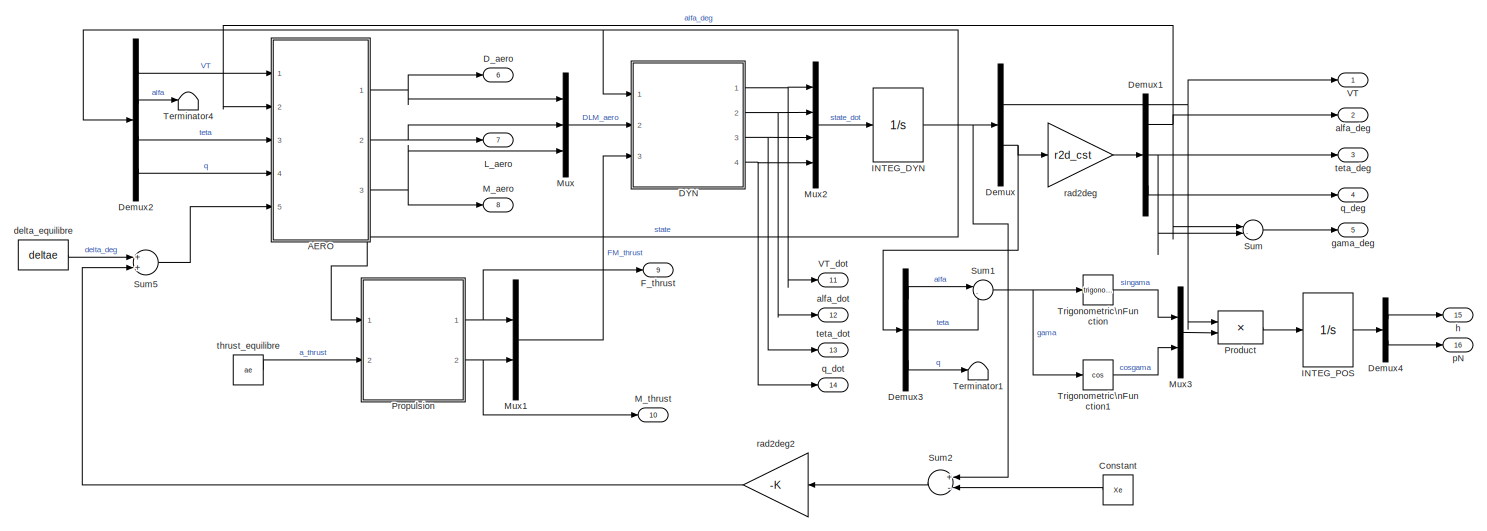
[diagram: root canvas - part 1/2, full width, top band]
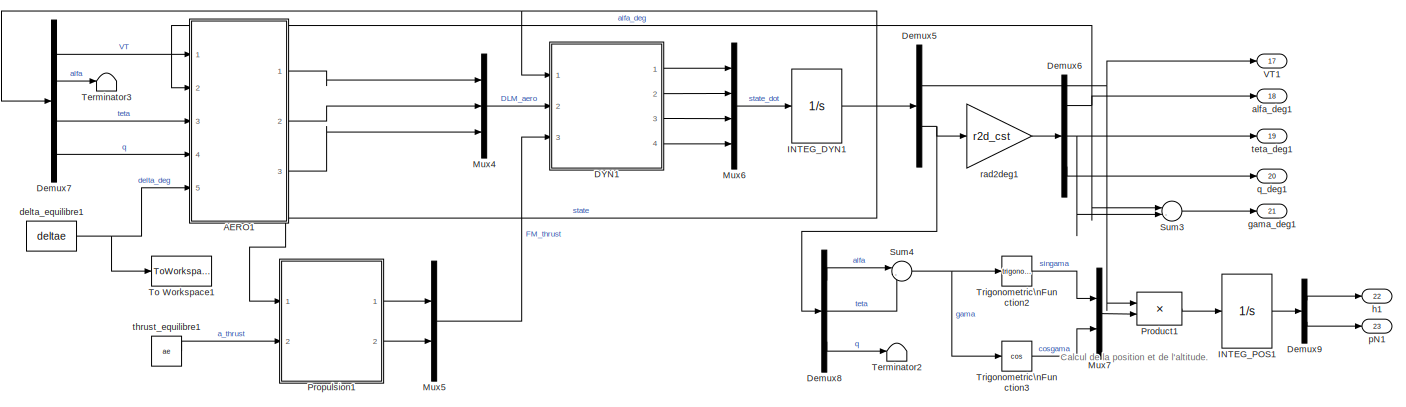
[diagram: root canvas - part 2/2, full width, bottom band]
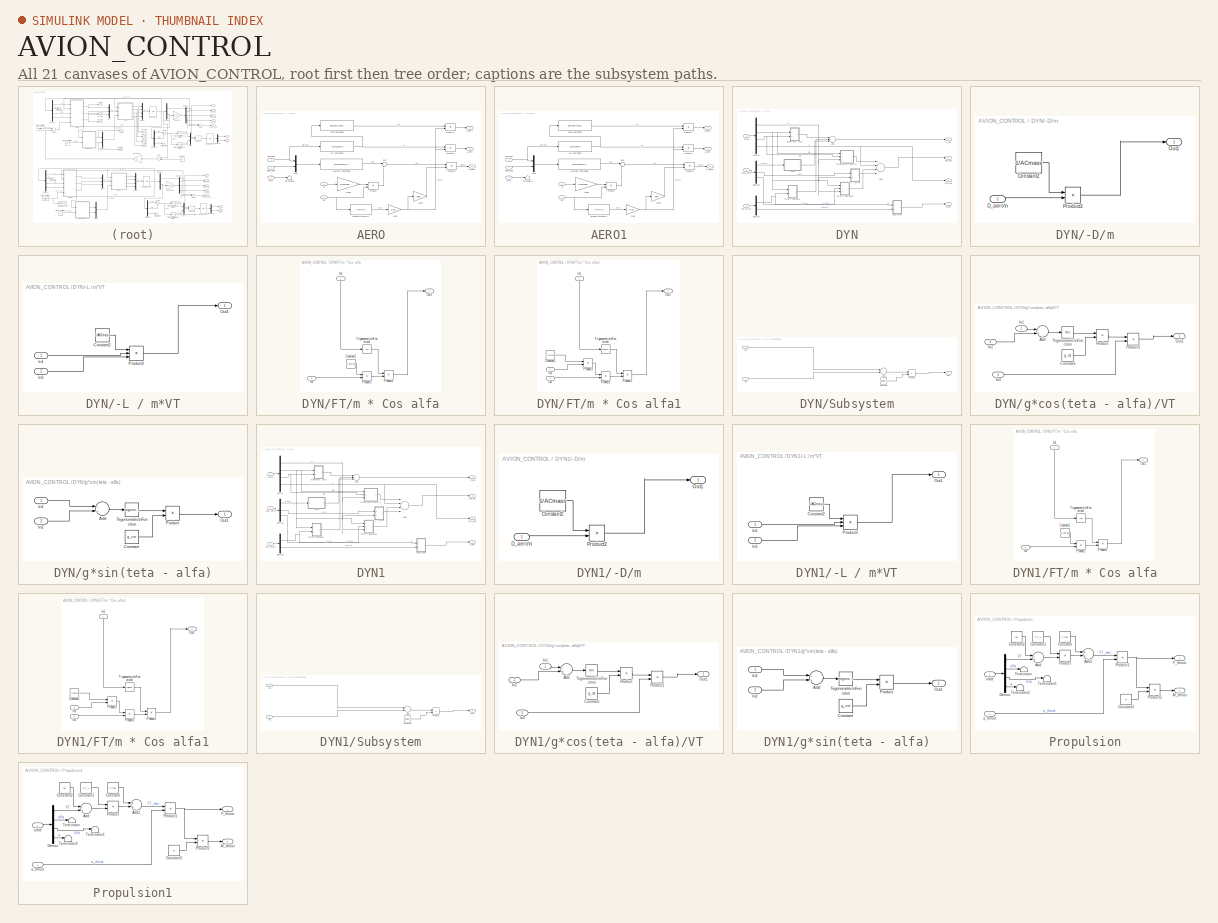
[diagram: thumbnail index - all 21 canvases of the model, root first then tree order]
MODEL AVION_CONTROL
KIND model
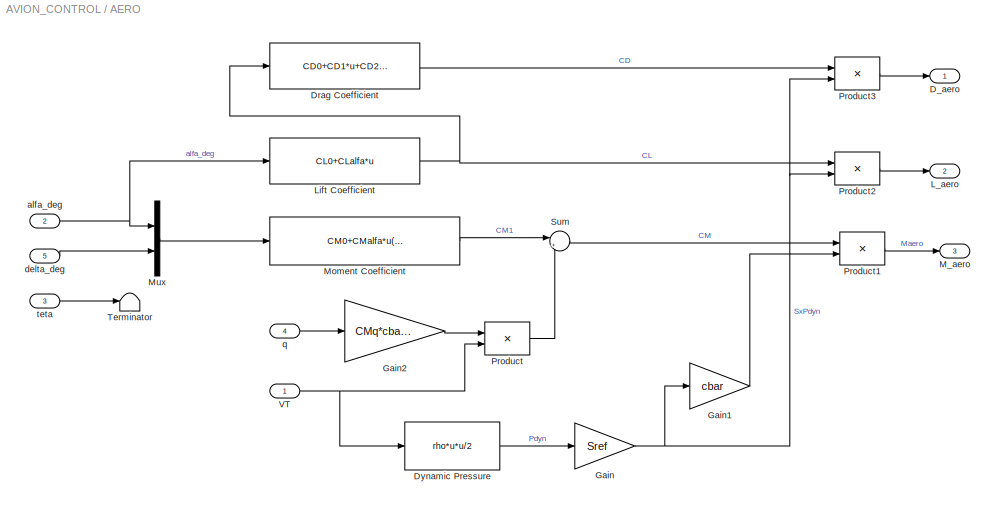
BLOCK [SubSystem] AERO
  Ports = [5, 3]
  RequestExecContextInheritance = off
  SID = 1
  Variant = off
BLOCK [Outport] AERO/D_aero
  IconDisplay = Port number
  SID = 21
BLOCK [Fcn] AERO/Drag Coefficient
  Expr = CD0+CD1*u+CD2*u*u
  SID = 7
BLOCK [Fcn] AERO/Dynamic Pressure
  Expr = rho*u*u/2
  SID = 8
BLOCK [Gain] AERO/Gain
  Gain = Sref
  SID = 9
BLOCK [Gain] AERO/Gain1
  Gain = cbar
  SID = 10
BLOCK [Gain] AERO/Gain2
  Gain = CMq*cbar/2
  SID = 11
BLOCK [Outport] AERO/L_aero
  IconDisplay = Port number
  Port = 2
  SID = 22
BLOCK [Fcn] AERO/Lift Coefficient
  Expr = CL0+CLalfa*u
  SID = 12
BLOCK [Outport] AERO/M_aero
  IconDisplay = Port number
  Port = 3
  SID = 23
BLOCK [Fcn] AERO/Moment Coefficient
  Expr = CM0+CMalfa*u(1)+CMdelta*u(2)
  SID = 13
BLOCK [Mux] AERO/Mux
  DisplayOption = bar
  Inputs = 2
  Ports = [2, 1]
  SID = 14
BLOCK [Product] AERO/Product
  Inputs = */
  Ports = [2, 1]
  RndMeth = Floor
  SID = 15
BLOCK [Product] AERO/Product1
  Inputs = **
  Ports = [2, 1]
  RndMeth = Floor
  SID = 16
BLOCK [Product] AERO/Product2
  Inputs = **
  Ports = [2, 1]
  RndMeth = Floor
  SID = 17
BLOCK [Product] AERO/Product3
  Inputs = **
  Ports = [2, 1]
  RndMeth = Floor
  SID = 18
BLOCK [Sum] AERO/Sum
  IconShape = round
  Inputs = |++
  Ports = [2, 1]
  SID = 19
BLOCK [Terminator] AERO/Terminator
  SID = 20
BLOCK [Inport] AERO/VT
  IconDisplay = Port number
  SID = 2
BLOCK [Inport] AERO/alfa_deg
  IconDisplay = Port number
  Port = 2
  SID = 3
BLOCK [Inport] AERO/delta_deg
  IconDisplay = Port number
  Port = 5
  SID = 6
BLOCK [Inport] AERO/q
  IconDisplay = Port number
  Port = 4
  SID = 5
BLOCK [Inport] AERO/teta
  IconDisplay = Port number
  Port = 3
  SID = 4
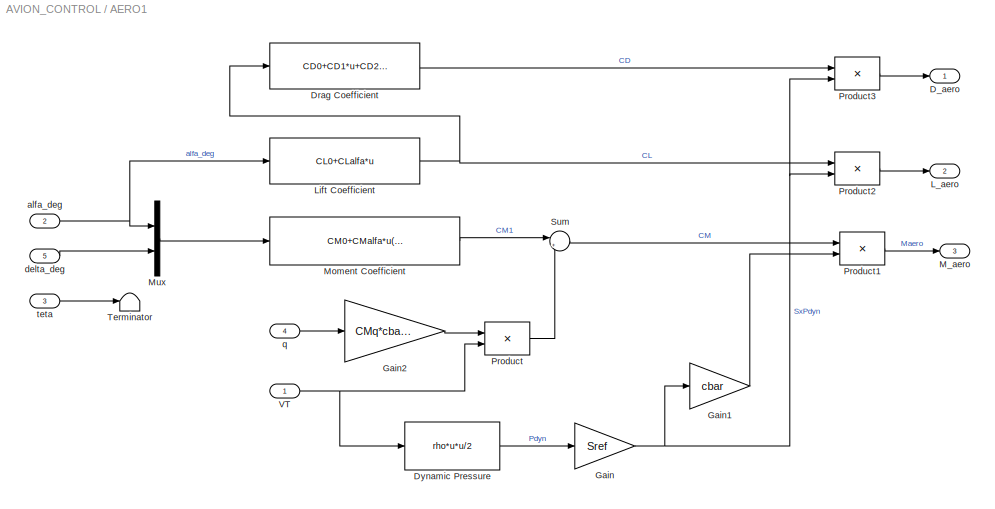
BLOCK [SubSystem] AERO1
  Ports = [5, 3]
  RequestExecContextInheritance = off
  SID = 340
  Variant = off
BLOCK [Outport] AERO1/D_aero
  IconDisplay = Port number
  SID = 360
BLOCK [Fcn] AERO1/Drag Coefficient
  Expr = CD0+CD1*u+CD2*u*u
  SID = 346
BLOCK [Fcn] AERO1/Dynamic Pressure
  Expr = rho*u*u/2
  SID = 347
BLOCK [Gain] AERO1/Gain
  Gain = Sref
  SID = 348
BLOCK [Gain] AERO1/Gain1
  Gain = cbar
  SID = 349
BLOCK [Gain] AERO1/Gain2
  Gain = CMq*cbar/2
  SID = 350
BLOCK [Outport] AERO1/L_aero
  IconDisplay = Port number
  Port = 2
  SID = 361
BLOCK [Fcn] AERO1/Lift Coefficient
  Expr = CL0+CLalfa*u
  SID = 351
BLOCK [Outport] AERO1/M_aero
  IconDisplay = Port number
  Port = 3
  SID = 362
BLOCK [Fcn] AERO1/Moment Coefficient
  Expr = CM0+CMalfa*u(1)+CMdelta*u(2)
  SID = 352
BLOCK [Mux] AERO1/Mux
  DisplayOption = bar
  Inputs = 2
  Ports = [2, 1]
  SID = 353
BLOCK [Product] AERO1/Product
  Inputs = */
  Ports = [2, 1]
  RndMeth = Floor
  SID = 354
BLOCK [Product] AERO1/Product1
  Inputs = **
  Ports = [2, 1]
  RndMeth = Floor
  SID = 355
BLOCK [Product] AERO1/Product2
  Inputs = **
  Ports = [2, 1]
  RndMeth = Floor
  SID = 356
BLOCK [Product] AERO1/Product3
  Inputs = **
  Ports = [2, 1]
  RndMeth = Floor
  SID = 357
BLOCK [Sum] AERO1/Sum
  IconShape = round
  Inputs = |++
  Ports = [2, 1]
  SID = 358
BLOCK [Terminator] AERO1/Terminator
  SID = 359
BLOCK [Inport] AERO1/VT
  IconDisplay = Port number
  SID = 341
BLOCK [Inport] AERO1/alfa_deg
  IconDisplay = Port number
  Port = 2
  SID = 342
BLOCK [Inport] AERO1/delta_deg
  IconDisplay = Port number
  Port = 5
  SID = 345
BLOCK [Inport] AERO1/q
  IconDisplay = Port number
  Port = 4
  SID = 344
BLOCK [Inport] AERO1/teta
  IconDisplay = Port number
  Port = 3
  SID = 343
BLOCK [Constant] Constant
  SID = 494
  Value = Xe
BLOCK [SubSystem] DYN
  Ports = [3, 4]
  RequestExecContextInheritance = off
  SID = 25
  Variant = off
BLOCK [SubSystem] DYN/-D//m
  Ports = [1, 1]
  RequestExecContextInheritance = off
  SID = 180
  Variant = off
BLOCK [Constant] DYN/-D//m/Constant2
  SID = 170
  Value = 1/ACmass
BLOCK [Inport] DYN/-D//m/D_aero\n
  IconDisplay = Port number
  SID = 181
BLOCK [Outport] DYN/-D//m/Out1
  IconDisplay = Port number
  SID = 182
BLOCK [Product] DYN/-D//m/Product3
  InputSameDT = off
  OutDataTypeStr = Inherit: Inherit via internal rule
  Ports = [2, 1]
  RndMeth = Floor
  SID = 171
  SaturateOnIntegerOverflow = off
BLOCK [SubSystem] DYN/-L // m*VT
  Ports = [2, 1]
  RequestExecContextInheritance = off
  SID = 214
  Variant = off
BLOCK [Constant] DYN/-L // m*VT/Constant2
  SID = 216
  Value = 1/ACmass
BLOCK [Inport] DYN/-L // m*VT/In1
  IconDisplay = Port number
  SID = 215
BLOCK [Inport] DYN/-L // m*VT/In2
  IconDisplay = Port number
  Port = 2
  SID = 219
BLOCK [Outport] DYN/-L // m*VT/Out1
  IconDisplay = Port number
  SID = 218
BLOCK [Product] DYN/-L // m*VT/Product3
  InputSameDT = off
  Inputs = **/
  OutDataTypeStr = Inherit: Inherit via internal rule
  Ports = [3, 1]
  RndMeth = Floor
  SID = 217
  SaturateOnIntegerOverflow = off
BLOCK [Sum] DYN/Add1
  InputSameDT = off
  Inputs = -+-
  OutDataTypeStr = Inherit: Inherit via internal rule
  Ports = [3, 1]
  SID = 165
  SaturateOnIntegerOverflow = off
BLOCK [Sum] DYN/Add2
  InputSameDT = off
  Inputs = ++--
  OutDataTypeStr = Inherit: Inherit via internal rule
  Ports = [4, 1]
  SID = 200
  SaturateOnIntegerOverflow = off
BLOCK [Inport] DYN/DLM_aero
  IconDisplay = Port number
  Port = 2
  SID = 27
BLOCK [Demux] DYN/Demux
  Ports = [1, 4]
  SID = 29
BLOCK [Demux] DYN/Demux1
  Outputs = 3
  Ports = [1, 3]
  SID = 30
BLOCK [Demux] DYN/Demux2
  Outputs = 2
  Ports = [1, 2]
  SID = 31
BLOCK [Inport] DYN/FM_thrust
  IconDisplay = Port number
  Port = 3
  SID = 28
BLOCK [SubSystem] DYN/FT//m * Cos alfa
  Ports = [2, 1]
  RequestExecContextInheritance = off
  SID = 176
  Variant = off
BLOCK [Constant] DYN/FT//m * Cos alfa/Constant1
  SID = 167
  Value = 1/ACmass
BLOCK [Inport] DYN/FT//m * Cos alfa/In1
  IconDisplay = Port number
  SID = 177
BLOCK [Inport] DYN/FT//m * Cos alfa/In2
  IconDisplay = Port number
  Port = 2
  SID = 178
BLOCK [Outport] DYN/FT//m * Cos alfa/Out1
  IconDisplay = Port number
  SID = 179
BLOCK [Product] DYN/FT//m * Cos alfa/Product1
  InputSameDT = off
  OutDataTypeStr = Inherit: Inherit via internal rule
  Ports = [2, 1]
  RndMeth = Floor
  SID = 166
  SaturateOnIntegerOverflow = off
BLOCK [Product] DYN/FT//m * Cos alfa/Product2
  InputSameDT = off
  OutDataTypeStr = Inherit: Inherit via internal rule
  Ports = [2, 1]
  RndMeth = Floor
  SID = 169
  SaturateOnIntegerOverflow = off
BLOCK [Trigonometry] DYN/FT//m * Cos alfa/Trigonometric\nFunction1
  Operator = cos
  Ports = [1, 1]
  SID = 168
BLOCK [SubSystem] DYN/FT//m * Cos alfa1
  Ports = [3, 1]
  RequestExecContextInheritance = off
  SID = 201
  Variant = off
BLOCK [Constant] DYN/FT//m * Cos alfa1/Constant1
  SID = 204
  Value = 1/ACmass
BLOCK [Inport] DYN/FT//m * Cos alfa1/In1
  IconDisplay = Port number
  SID = 202
BLOCK [Inport] DYN/FT//m * Cos alfa1/In2
  IconDisplay = Port number
  Port = 2
  SID = 203
BLOCK [Inport] DYN/FT//m * Cos alfa1/In3
  IconDisplay = Port number
  Port = 3
  SID = 211
BLOCK [Outport] DYN/FT//m * Cos alfa1/Out1
  IconDisplay = Port number
  SID = 208
BLOCK [Product] DYN/FT//m * Cos alfa1/Product1
  InputSameDT = off
  OutDataTypeStr = Inherit: Inherit via internal rule
  Ports = [2, 1]
  RndMeth = Floor
  SID = 205
  SaturateOnIntegerOverflow = off
BLOCK [Product] DYN/FT//m * Cos alfa1/Product2
  InputSameDT = off
  OutDataTypeStr = Inherit: Inherit via internal rule
  Ports = [2, 1]
  RndMeth = Floor
  SID = 206
  SaturateOnIntegerOverflow = off
BLOCK [Product] DYN/FT//m * Cos alfa1/Product3
  InputSameDT = off
  Inputs = */
  OutDataTypeStr = Inherit: Inherit via internal rule
  Ports = [2, 1]
  RndMeth = Floor
  SID = 209
  SaturateOnIntegerOverflow = off
BLOCK [Trigonometry] DYN/FT//m * Cos alfa1/Trigonometric\nFunction1
  Ports = [1, 1]
  SID = 207
BLOCK [SubSystem] DYN/Subsystem
  Ports = [2, 1]
  RequestExecContextInheritance = off
  SID = 223
  Variant = off
BLOCK [Sum] DYN/Subsystem/Add3
  InputSameDT = off
  OutDataTypeStr = Inherit: Inherit via internal rule
  Ports = [2, 1]
  SID = 220
  SaturateOnIntegerOverflow = off
BLOCK [Constant] DYN/Subsystem/Constant
  SID = 222
  Value = ACinertia_yy
BLOCK [Inport] DYN/Subsystem/In1
  IconDisplay = Port number
  SID = 224
BLOCK [Inport] DYN/Subsystem/In2
  IconDisplay = Port number
  Port = 2
  SID = 225
BLOCK [Outport] DYN/Subsystem/Out1
  IconDisplay = Port number
  SID = 226
BLOCK [Product] DYN/Subsystem/Product
  InputSameDT = off
  Inputs = */
  OutDataTypeStr = Inherit: Inherit via internal rule
  Ports = [2, 1]
  RndMeth = Floor
  SID = 221
  SaturateOnIntegerOverflow = off
BLOCK [Outport] DYN/VT_dot
  IconDisplay = Port number
  SID = 51
BLOCK [Outport] DYN/alfa_dot
  IconDisplay = Port number
  Port = 2
  SID = 52
BLOCK [SubSystem] DYN/g*cos(teta - alfa)//VT
  Ports = [3, 1]
  RequestExecContextInheritance = off
  SID = 187
  Variant = off
BLOCK [Sum] DYN/g*cos(teta - alfa)//VT/Add
  InputSameDT = off
  Inputs = -+
  OutDataTypeStr = Inherit: Inherit via internal rule
  Ports = [2, 1]
  SID = 190
  SaturateOnIntegerOverflow = off
BLOCK [Constant] DYN/g*cos(teta - alfa)//VT/Constant
  SID = 191
  Value = g_cst
BLOCK [Inport] DYN/g*cos(teta - alfa)//VT/In1
  IconDisplay = Port number
  SID = 188
BLOCK [Inport] DYN/g*cos(teta - alfa)//VT/In2
  IconDisplay = Port number
  Port = 2
  SID = 189
BLOCK [Inport] DYN/g*cos(teta - alfa)//VT/In3
  IconDisplay = Port number
  Port = 3
  SID = 195
BLOCK [Outport] DYN/g*cos(teta - alfa)//VT/Out1
  IconDisplay = Port number
  SID = 194
BLOCK [Product] DYN/g*cos(teta - alfa)//VT/Product
  InputSameDT = off
  OutDataTypeStr = Inherit: Inherit via internal rule
  Ports = [2, 1]
  RndMeth = Floor
  SID = 192
  SaturateOnIntegerOverflow = off
BLOCK [Product] DYN/g*cos(teta - alfa)//VT/Product1
  InputSameDT = off
  Inputs = */
  OutDataTypeStr = Inherit: Inherit via internal rule
  Ports = [2, 1]
  RndMeth = Floor
  SID = 196
  SaturateOnIntegerOverflow = off
BLOCK [Trigonometry] DYN/g*cos(teta - alfa)//VT/Trigonometric\nFunction
  Operator = cos
  Ports = [1, 1]
  SID = 193
BLOCK [SubSystem] DYN/g*sin(teta - alfa)
  Ports = [2, 1]
  RequestExecContextInheritance = off
  SID = 183
  Variant = off
BLOCK [Sum] DYN/g*sin(teta - alfa)/Add
  InputSameDT = off
  Inputs = -+
  OutDataTypeStr = Inherit: Inherit via internal rule
  Ports = [2, 1]
  SID = 162
  SaturateOnIntegerOverflow = off
BLOCK [Constant] DYN/g*sin(teta - alfa)/Constant
  SID = 161
  Value = g_cst
BLOCK [Inport] DYN/g*sin(teta - alfa)/In1
  IconDisplay = Port number
  SID = 184
BLOCK [Inport] DYN/g*sin(teta - alfa)/In2
  IconDisplay = Port number
  Port = 2
  SID = 185
BLOCK [Outport] DYN/g*sin(teta - alfa)/Out1
  IconDisplay = Port number
  SID = 186
BLOCK [Product] DYN/g*sin(teta - alfa)/Product
  InputSameDT = off
  OutDataTypeStr = Inherit: Inherit via internal rule
  Ports = [2, 1]
  RndMeth = Floor
  SID = 164
  SaturateOnIntegerOverflow = off
BLOCK [Trigonometry] DYN/g*sin(teta - alfa)/Trigonometric\nFunction
  Ports = [1, 1]
  SID = 163
BLOCK [Outport] DYN/q_dot
  IconDisplay = Port number
  Port = 4
  SID = 54
BLOCK [Inport] DYN/state
  IconDisplay = Port number
  SID = 26
BLOCK [Outport] DYN/teta_dot
  IconDisplay = Port number
  Port = 3
  SID = 53
BLOCK [SubSystem] DYN1
  Ports = [3, 4]
  RequestExecContextInheritance = off
  SID = 363
  Variant = off
BLOCK [SubSystem] DYN1/-D//m
  Ports = [1, 1]
  RequestExecContextInheritance = off
  SID = 367
  Variant = off
BLOCK [Constant] DYN1/-D//m/Constant2
  SID = 369
  Value = 1/ACmass
BLOCK [Inport] DYN1/-D//m/D_aero\n
  IconDisplay = Port number
  SID = 368
BLOCK [Outport] DYN1/-D//m/Out1
  IconDisplay = Port number
  SID = 371
BLOCK [Product] DYN1/-D//m/Product3
  InputSameDT = off
  OutDataTypeStr = Inherit: Inherit via internal rule
  Ports = [2, 1]
  RndMeth = Floor
  SID = 370
  SaturateOnIntegerOverflow = off
BLOCK [SubSystem] DYN1/-L // m*VT
  Ports = [2, 1]
  RequestExecContextInheritance = off
  SID = 372
  Variant = off
BLOCK [Constant] DYN1/-L // m*VT/Constant2
  SID = 375
  Value = 1/ACmass
BLOCK [Inport] DYN1/-L // m*VT/In1
  IconDisplay = Port number
  SID = 373
BLOCK [Inport] DYN1/-L // m*VT/In2
  IconDisplay = Port number
  Port = 2
  SID = 374
BLOCK [Outport] DYN1/-L // m*VT/Out1
  IconDisplay = Port number
  SID = 377
BLOCK [Product] DYN1/-L // m*VT/Product3
  InputSameDT = off
  Inputs = **/
  OutDataTypeStr = Inherit: Inherit via internal rule
  Ports = [3, 1]
  RndMeth = Floor
  SID = 376
  SaturateOnIntegerOverflow = off
BLOCK [Sum] DYN1/Add1
  InputSameDT = off
  Inputs = -+-
  OutDataTypeStr = Inherit: Inherit via internal rule
  Ports = [3, 1]
  SID = 378
  SaturateOnIntegerOverflow = off
BLOCK [Sum] DYN1/Add2
  InputSameDT = off
  Inputs = ++--
  OutDataTypeStr = Inherit: Inherit via internal rule
  Ports = [4, 1]
  SID = 379
  SaturateOnIntegerOverflow = off
BLOCK [Inport] DYN1/DLM_aero
  IconDisplay = Port number
  Port = 2
  SID = 365
BLOCK [Demux] DYN1/Demux
  Ports = [1, 4]
  SID = 380
BLOCK [Demux] DYN1/Demux1
  Outputs = 3
  Ports = [1, 3]
  SID = 381
BLOCK [Demux] DYN1/Demux2
  Outputs = 2
  Ports = [1, 2]
  SID = 382
BLOCK [Inport] DYN1/FM_thrust
  IconDisplay = Port number
  Port = 3
  SID = 366
BLOCK [SubSystem] DYN1/FT//m * Cos alfa
  Ports = [2, 1]
  RequestExecContextInheritance = off
  SID = 383
  Variant = off
BLOCK [Constant] DYN1/FT//m * Cos alfa/Constant1
  SID = 386
  Value = 1/ACmass
BLOCK [Inport] DYN1/FT//m * Cos alfa/In1
  IconDisplay = Port number
  SID = 384
BLOCK [Inport] DYN1/FT//m * Cos alfa/In2
  IconDisplay = Port number
  Port = 2
  SID = 385
BLOCK [Outport] DYN1/FT//m * Cos alfa/Out1
  IconDisplay = Port number
  SID = 390
BLOCK [Product] DYN1/FT//m * Cos alfa/Product1
  InputSameDT = off
  OutDataTypeStr = Inherit: Inherit via internal rule
  Ports = [2, 1]
  RndMeth = Floor
  SID = 387
  SaturateOnIntegerOverflow = off
BLOCK [Product] DYN1/FT//m * Cos alfa/Product2
  InputSameDT = off
  OutDataTypeStr = Inherit: Inherit via internal rule
  Ports = [2, 1]
  RndMeth = Floor
  SID = 388
  SaturateOnIntegerOverflow = off
BLOCK [Trigonometry] DYN1/FT//m * Cos alfa/Trigonometric\nFunction1
  Operator = cos
  Ports = [1, 1]
  SID = 389
BLOCK [SubSystem] DYN1/FT//m * Cos alfa1
  Ports = [3, 1]
  RequestExecContextInheritance = off
  SID = 391
  Variant = off
BLOCK [Constant] DYN1/FT//m * Cos alfa1/Constant1
  SID = 395
  Value = 1/ACmass
BLOCK [Inport] DYN1/FT//m * Cos alfa1/In1
  IconDisplay = Port number
  SID = 392
BLOCK [Inport] DYN1/FT//m * Cos alfa1/In2
  IconDisplay = Port number
  Port = 2
  SID = 393
BLOCK [Inport] DYN1/FT//m * Cos alfa1/In3
  IconDisplay = Port number
  Port = 3
  SID = 394
BLOCK [Outport] DYN1/FT//m * Cos alfa1/Out1
  IconDisplay = Port number
  SID = 400
BLOCK [Product] DYN1/FT//m * Cos alfa1/Product1
  InputSameDT = off
  OutDataTypeStr = Inherit: Inherit via internal rule
  Ports = [2, 1]
  RndMeth = Floor
  SID = 396
  SaturateOnIntegerOverflow = off
BLOCK [Product] DYN1/FT//m * Cos alfa1/Product2
  InputSameDT = off
  OutDataTypeStr = Inherit: Inherit via internal rule
  Ports = [2, 1]
  RndMeth = Floor
  SID = 397
  SaturateOnIntegerOverflow = off
BLOCK [Product] DYN1/FT//m * Cos alfa1/Product3
  InputSameDT = off
  Inputs = */
  OutDataTypeStr = Inherit: Inherit via internal rule
  Ports = [2, 1]
  RndMeth = Floor
  SID = 398
  SaturateOnIntegerOverflow = off
BLOCK [Trigonometry] DYN1/FT//m * Cos alfa1/Trigonometric\nFunction1
  Ports = [1, 1]
  SID = 399
BLOCK [SubSystem] DYN1/Subsystem
  Ports = [2, 1]
  RequestExecContextInheritance = off
  SID = 401
  Variant = off
BLOCK [Sum] DYN1/Subsystem/Add3
  InputSameDT = off
  OutDataTypeStr = Inherit: Inherit via internal rule
  Ports = [2, 1]
  SID = 404
  SaturateOnIntegerOverflow = off
BLOCK [Constant] DYN1/Subsystem/Constant
  SID = 405
  Value = ACinertia_yy
BLOCK [Inport] DYN1/Subsystem/In1
  IconDisplay = Port number
  SID = 402
BLOCK [Inport] DYN1/Subsystem/In2
  IconDisplay = Port number
  Port = 2
  SID = 403
BLOCK [Outport] DYN1/Subsystem/Out1
  IconDisplay = Port number
  SID = 407
BLOCK [Product] DYN1/Subsystem/Product
  InputSameDT = off
  Inputs = */
  OutDataTypeStr = Inherit: Inherit via internal rule
  Ports = [2, 1]
  RndMeth = Floor
  SID = 406
  SaturateOnIntegerOverflow = off
BLOCK [Outport] DYN1/VT_dot
  IconDisplay = Port number
  SID = 426
BLOCK [Outport] DYN1/alfa_dot
  IconDisplay = Port number
  Port = 2
  SID = 427
BLOCK [SubSystem] DYN1/g*cos(teta - alfa)//VT
  Ports = [3, 1]
  RequestExecContextInheritance = off
  SID = 408
  Variant = off
BLOCK [Sum] DYN1/g*cos(teta - alfa)//VT/Add
  InputSameDT = off
  Inputs = -+
  OutDataTypeStr = Inherit: Inherit via internal rule
  Ports = [2, 1]
  SID = 412
  SaturateOnIntegerOverflow = off
BLOCK [Constant] DYN1/g*cos(teta - alfa)//VT/Constant
  SID = 413
  Value = g_cst
BLOCK [Inport] DYN1/g*cos(teta - alfa)//VT/In1
  IconDisplay = Port number
  SID = 409
BLOCK [Inport] DYN1/g*cos(teta - alfa)//VT/In2
  IconDisplay = Port number
  Port = 2
  SID = 410
BLOCK [Inport] DYN1/g*cos(teta - alfa)//VT/In3
  IconDisplay = Port number
  Port = 3
  SID = 411
BLOCK [Outport] DYN1/g*cos(teta - alfa)//VT/Out1
  IconDisplay = Port number
  SID = 417
BLOCK [Product] DYN1/g*cos(teta - alfa)//VT/Product
  InputSameDT = off
  OutDataTypeStr = Inherit: Inherit via internal rule
  Ports = [2, 1]
  RndMeth = Floor
  SID = 414
  SaturateOnIntegerOverflow = off
BLOCK [Product] DYN1/g*cos(teta - alfa)//VT/Product1
  InputSameDT = off
  Inputs = */
  OutDataTypeStr = Inherit: Inherit via internal rule
  Ports = [2, 1]
  RndMeth = Floor
  SID = 415
  SaturateOnIntegerOverflow = off
BLOCK [Trigonometry] DYN1/g*cos(teta - alfa)//VT/Trigonometric\nFunction
  Operator = cos
  Ports = [1, 1]
  SID = 416
BLOCK [SubSystem] DYN1/g*sin(teta - alfa)
  Ports = [2, 1]
  RequestExecContextInheritance = off
  SID = 418
  Variant = off
BLOCK [Sum] DYN1/g*sin(teta - alfa)/Add
  InputSameDT = off
  Inputs = -+
  OutDataTypeStr = Inherit: Inherit via internal rule
  Ports = [2, 1]
  SID = 421
  SaturateOnIntegerOverflow = off
BLOCK [Constant] DYN1/g*sin(teta - alfa)/Constant
  SID = 422
  Value = g_cst
BLOCK [Inport] DYN1/g*sin(teta - alfa)/In1
  IconDisplay = Port number
  SID = 419
BLOCK [Inport] DYN1/g*sin(teta - alfa)/In2
  IconDisplay = Port number
  Port = 2
  SID = 420
BLOCK [Outport] DYN1/g*sin(teta - alfa)/Out1
  IconDisplay = Port number
  SID = 425
BLOCK [Product] DYN1/g*sin(teta - alfa)/Product
  InputSameDT = off
  OutDataTypeStr = Inherit: Inherit via internal rule
  Ports = [2, 1]
  RndMeth = Floor
  SID = 423
  SaturateOnIntegerOverflow = off
BLOCK [Trigonometry] DYN1/g*sin(teta - alfa)/Trigonometric\nFunction
  Ports = [1, 1]
  SID = 424
BLOCK [Outport] DYN1/q_dot
  IconDisplay = Port number
  Port = 4
  SID = 429
BLOCK [Inport] DYN1/state
  IconDisplay = Port number
  SID = 364
BLOCK [Outport] DYN1/teta_dot
  IconDisplay = Port number
  Port = 3
  SID = 428
BLOCK [Outport] D_aero
  IconDisplay = Port number
  Port = 6
  SID = 115
BLOCK [Demux] Demux
  Outputs = [1,3]
  Ports = [1, 2]
  SID = 55
BLOCK [Demux] Demux1
  Outputs = 3
  Ports = [1, 3]
  SID = 56
BLOCK [Demux] Demux2
  Ports = [1, 4]
  SID = 57
BLOCK [Demux] Demux3
  Outputs = 3
  Ports = [1, 3]
  SID = 58
BLOCK [Demux] Demux4
  Outputs = 2
  Ports = [1, 2]
  SID = 59
BLOCK [Demux] Demux5
  Outputs = [1,3]
  Ports = [1, 2]
  SID = 430
BLOCK [Demux] Demux6
  Outputs = 3
  Ports = [1, 3]
  SID = 431
BLOCK [Demux] Demux7
  Ports = [1, 4]
  SID = 432
BLOCK [Demux] Demux8
  Outputs = 3
  Ports = [1, 3]
  SID = 433
BLOCK [Demux] Demux9
  Outputs = 2
  Ports = [1, 2]
  SID = 434
BLOCK [Outport] F_thrust
  IconDisplay = Port number
  Port = 9
  SID = 118
BLOCK [Integrator] INTEG_DYN
  InitialCondition = etat_ini
  Ports = [1, 1]
  SID = 63
BLOCK [Integrator] INTEG_DYN1
  InitialCondition = etat_ini
  Ports = [1, 1]
  SID = 435
BLOCK [Integrator] INTEG_POS
  InitialCondition = pos_ini
  Ports = [1, 1]
  SID = 64
BLOCK [Integrator] INTEG_POS1
  InitialCondition = pos_ini
  Ports = [1, 1]
  SID = 436
BLOCK [Outport] L_aero
  IconDisplay = Port number
  Port = 7
  SID = 116
BLOCK [Outport] M_aero
  IconDisplay = Port number
  Port = 8
  SID = 117
BLOCK [Outport] M_thrust
  IconDisplay = Port number
  Port = 10
  SID = 119
BLOCK [Mux] Mux
  DisplayOption = bar
  Inputs = 3
  Ports = [3, 1]
  SID = 67
BLOCK [Mux] Mux1
  DisplayOption = bar
  Inputs = 2
  Ports = [2, 1]
  SID = 68
BLOCK [Mux] Mux2
  DisplayOption = bar
  Ports = [4, 1]
  SID = 69
BLOCK [Mux] Mux3
  DisplayOption = bar
  Inputs = 2
  Ports = [2, 1]
  SID = 70
BLOCK [Mux] Mux4
  DisplayOption = bar
  Inputs = 3
  Ports = [3, 1]
  SID = 437
BLOCK [Mux] Mux5
  DisplayOption = bar
  Inputs = 2
  Ports = [2, 1]
  SID = 438
BLOCK [Mux] Mux6
  DisplayOption = bar
  Ports = [4, 1]
  SID = 439
BLOCK [Mux] Mux7
  DisplayOption = bar
  Inputs = 2
  Ports = [2, 1]
  SID = 440
BLOCK [Product] Product
  Inputs = **
  Ports = [2, 1]
  RndMeth = Floor
  SID = 74
BLOCK [Product] Product1
  Inputs = **
  Ports = [2, 1]
  RndMeth = Floor
  SID = 441
BLOCK [SubSystem] Propulsion
  Ports = [2, 2]
  RequestExecContextInheritance = off
  SID = 76
  Variant = off
BLOCK [Sum] Propulsion/Add
  InputSameDT = off
  Inputs = -+
  OutDataTypeStr = Inherit: Inherit via internal rule
  Ports = [2, 1]
  SID = 152
  SaturateOnIntegerOverflow = off
BLOCK [Sum] Propulsion/Add1
  InputSameDT = off
  OutDataTypeStr = Inherit: Inherit via internal rule
  Ports = [2, 1]
  SID = 154
  SaturateOnIntegerOverflow = off
BLOCK [Constant] Propulsion/Constant
  SID = 149
  Value = FT80
BLOCK [Constant] Propulsion/Constant1
  SID = 150
  Value = FT_V
BLOCK [Constant] Propulsion/Constant2
  SID = 151
  Value = 80
BLOCK [Constant] Propulsion/Constant3
  SID = 156
  Value = xt
BLOCK [Demux] Propulsion/Demux
  Ports = [1, 4]
  SID = 79
BLOCK [Outport] Propulsion/F_thrust
  IconDisplay = Port number
  SID = 86
BLOCK [Outport] Propulsion/M_thrust
  IconDisplay = Port number
  Port = 2
  SID = 87
BLOCK [Product] Propulsion/Product
  InputSameDT = off
  OutDataTypeStr = Inherit: Inherit via internal rule
  Ports = [2, 1]
  RndMeth = Floor
  SID = 153
  SaturateOnIntegerOverflow = off
BLOCK [Product] Propulsion/Product1
  InputSameDT = off
  OutDataTypeStr = Inherit: Inherit via internal rule
  Ports = [2, 1]
  RndMeth = Floor
  SID = 155
  SaturateOnIntegerOverflow = off
BLOCK [Product] Propulsion/Product2
  InputSameDT = off
  OutDataTypeStr = Inherit: Inherit via internal rule
  Ports = [2, 1]
  RndMeth = Floor
  SID = 157
  SaturateOnIntegerOverflow = off
BLOCK [Terminator] Propulsion/Terminator
  SID = 158
BLOCK [Terminator] Propulsion/Terminator1
  SID = 159
BLOCK [Terminator] Propulsion/Terminator2
  SID = 160
BLOCK [Inport] Propulsion/a_thrust
  IconDisplay = Port number
  Port = 2
  SID = 78
BLOCK [Inport] Propulsion/state
  IconDisplay = Port number
  SID = 77
BLOCK [SubSystem] Propulsion1
  Ports = [2, 2]
  RequestExecContextInheritance = off
  SID = 442
  Variant = off
BLOCK [Sum] Propulsion1/Add
  InputSameDT = off
  Inputs = -+
  OutDataTypeStr = Inherit: Inherit via internal rule
  Ports = [2, 1]
  SID = 445
  SaturateOnIntegerOverflow = off
BLOCK [Sum] Propulsion1/Add1
  InputSameDT = off
  OutDataTypeStr = Inherit: Inherit via internal rule
  Ports = [2, 1]
  SID = 446
  SaturateOnIntegerOverflow = off
BLOCK [Constant] Propulsion1/Constant
  SID = 447
  Value = FT80
BLOCK [Constant] Propulsion1/Constant1
  SID = 448
  Value = FT_V
BLOCK [Constant] Propulsion1/Constant2
  SID = 449
  Value = 80
BLOCK [Constant] Propulsion1/Constant3
  SID = 450
  Value = xt
BLOCK [Demux] Propulsion1/Demux
  Ports = [1, 4]
  SID = 451
BLOCK [Outport] Propulsion1/F_thrust
  IconDisplay = Port number
  SID = 458
BLOCK [Outport] Propulsion1/M_thrust
  IconDisplay = Port number
  Port = 2
  SID = 459
BLOCK [Product] Propulsion1/Product
  InputSameDT = off
  OutDataTypeStr = Inherit: Inherit via internal rule
  Ports = [2, 1]
  RndMeth = Floor
  SID = 452
  SaturateOnIntegerOverflow = off
BLOCK [Product] Propulsion1/Product1
  InputSameDT = off
  OutDataTypeStr = Inherit: Inherit via internal rule
  Ports = [2, 1]
  RndMeth = Floor
  SID = 453
  SaturateOnIntegerOverflow = off
BLOCK [Product] Propulsion1/Product2
  InputSameDT = off
  OutDataTypeStr = Inherit: Inherit via internal rule
  Ports = [2, 1]
  RndMeth = Floor
  SID = 454
  SaturateOnIntegerOverflow = off
BLOCK [Terminator] Propulsion1/Terminator
  SID = 455
BLOCK [Terminator] Propulsion1/Terminator1
  SID = 456
BLOCK [Terminator] Propulsion1/Terminator2
  SID = 457
BLOCK [Inport] Propulsion1/a_thrust
  IconDisplay = Port number
  Port = 2
  SID = 444
BLOCK [Inport] Propulsion1/state
  IconDisplay = Port number
  SID = 443
BLOCK [Sum] Sum
  IconShape = round
  Inputs = |-+
  Ports = [2, 1]
  SID = 90
BLOCK [Sum] Sum1
  IconShape = round
  Inputs = |-+
  Ports = [2, 1]
  SID = 91
BLOCK [Sum] Sum2
  Inputs = +-
  Ports = [2, 1]
  SID = 493
BLOCK [Sum] Sum3
  IconShape = round
  Inputs = |-+
  Ports = [2, 1]
  SID = 462
BLOCK [Sum] Sum4
  IconShape = round
  Inputs = |-+
  Ports = [2, 1]
  SID = 463
BLOCK [Sum] Sum5
  Ports = [2, 1]
  SID = 496
BLOCK [Terminator] Terminator1
  SID = 98
BLOCK [Terminator] Terminator2
  SID = 465
BLOCK [Terminator] Terminator3
  SID = 466
BLOCK [Terminator] Terminator4
  SID = 335
BLOCK [ToWorkspace] To Workspace1
  MaxDataPoints = inf
  Ports = [1]
  SID = 467
  SampleTime = -1
  VariableName = delta_deg1
BLOCK [Trigonometry] Trigonometric\nFunction
  Ports = [1, 1]
  SID = 100
BLOCK [Trigonometry] Trigonometric\nFunction1
  Operator = cos
  Ports = [1, 1]
  SID = 101
BLOCK [Trigonometry] Trigonometric\nFunction2
  Ports = [1, 1]
  SID = 468
BLOCK [Trigonometry] Trigonometric\nFunction3
  Operator = cos
  Ports = [1, 1]
  SID = 469
BLOCK [Outport] VT
  IconDisplay = Port number
  SID = 110
BLOCK [Outport] VT1
  IconDisplay = Port number
  Port = 17
  SID = 473
BLOCK [Outport] VT_dot
  IconDisplay = Port number
  Port = 11
  SID = 120
BLOCK [Outport] alfa_deg
  IconDisplay = Port number
  Port = 2
  SID = 111
BLOCK [Outport] alfa_deg1
  IconDisplay = Port number
  Port = 18
  SID = 474
BLOCK [Outport] alfa_dot
  IconDisplay = Port number
  Port = 12
  SID = 121
BLOCK [Constant] delta_equilibre
  SID = 104
  Value = deltae
BLOCK [Constant] delta_equilibre1
  SID = 470
  Value = deltae
BLOCK [Outport] gama_deg
  IconDisplay = Port number
  Port = 5
  SID = 114
BLOCK [Outport] gama_deg1
  IconDisplay = Port number
  Port = 21
  SID = 477
BLOCK [Outport] h
  IconDisplay = Port number
  Port = 15
  SID = 124
BLOCK [Outport] h1
  IconDisplay = Port number
  Port = 22
  SID = 487
BLOCK [Outport] pN
  IconDisplay = Port number
  Port = 16
  SID = 125
BLOCK [Outport] pN1
  IconDisplay = Port number
  Port = 23
  SID = 488
BLOCK [Outport] q_deg
  IconDisplay = Port number
  Port = 4
  SID = 113
BLOCK [Outport] q_deg1
  IconDisplay = Port number
  Port = 20
  SID = 476
BLOCK [Outport] q_dot
  IconDisplay = Port number
  Port = 14
  SID = 123
BLOCK [Gain] rad2deg
  Gain = r2d_cst
  SID = 105
BLOCK [Gain] rad2deg1
  Gain = r2d_cst
  SID = 471
BLOCK [Gain] rad2deg2
  Gain = -K
  Multiplication = Matrix(K*u)
  SID = 495
BLOCK [Outport] teta_deg
  IconDisplay = Port number
  Port = 3
  SID = 112
BLOCK [Outport] teta_deg1
  IconDisplay = Port number
  Port = 19
  SID = 475
BLOCK [Outport] teta_dot
  IconDisplay = Port number
  Port = 13
  SID = 122
BLOCK [Constant] thrust_equilibre
  SID = 109
  Value = ae
BLOCK [Constant] thrust_equilibre1
  SID = 472
  Value = ae
ANNOTATION (root): Calcul de la position et de l'altitude.
LINE AERO/Drag Coefficient:1 -> AERO/Product3:1
LINE AERO/Dynamic Pressure:1 -> AERO/Gain:1
LINE AERO/Gain1:1 -> AERO/Product1:2
LINE AERO/Gain2:1 -> AERO/Product:1
NET AERO/Gain:1 -> AERO/Gain1:1, AERO/Product2:2, AERO/Product3:2
NET AERO/Lift Coefficient:1 -> AERO/Drag Coefficient:1, AERO/Product2:1
LINE AERO/Moment Coefficient:1 -> AERO/Sum:1
LINE AERO/Mux:1 -> AERO/Moment Coefficient:1
LINE AERO/Product1:1 -> AERO/M_aero:1
LINE AERO/Product2:1 -> AERO/L_aero:1
LINE AERO/Product3:1 -> AERO/D_aero:1
LINE AERO/Product:1 -> AERO/Sum:2
LINE AERO/Sum:1 -> AERO/Product1:1
NET AERO/VT:1 -> AERO/Dynamic Pressure:1, AERO/Product:2
NET AERO/alfa_deg:1 -> AERO/Lift Coefficient:1, AERO/Mux:1
LINE AERO/delta_deg:1 -> AERO/Mux:2
LINE AERO/q:1 -> AERO/Gain2:1
LINE AERO/teta:1 -> AERO/Terminator:1
LINE AERO1/Drag Coefficient:1 -> AERO1/Product3:1
LINE AERO1/Dynamic Pressure:1 -> AERO1/Gain:1
LINE AERO1/Gain1:1 -> AERO1/Product1:2
LINE AERO1/Gain2:1 -> AERO1/Product:1
NET AERO1/Gain:1 -> AERO1/Gain1:1, AERO1/Product2:2, AERO1/Product3:2
NET AERO1/Lift Coefficient:1 -> AERO1/Drag Coefficient:1, AERO1/Product2:1
LINE AERO1/Moment Coefficient:1 -> AERO1/Sum:1
LINE AERO1/Mux:1 -> AERO1/Moment Coefficient:1
LINE AERO1/Product1:1 -> AERO1/M_aero:1
LINE AERO1/Product2:1 -> AERO1/L_aero:1
LINE AERO1/Product3:1 -> AERO1/D_aero:1
LINE AERO1/Product:1 -> AERO1/Sum:2
LINE AERO1/Sum:1 -> AERO1/Product1:1
NET AERO1/VT:1 -> AERO1/Dynamic Pressure:1, AERO1/Product:2
NET AERO1/alfa_deg:1 -> AERO1/Lift Coefficient:1, AERO1/Mux:1
LINE AERO1/delta_deg:1 -> AERO1/Mux:2
LINE AERO1/q:1 -> AERO1/Gain2:1
LINE AERO1/teta:1 -> AERO1/Terminator:1
LINE AERO1:1 -> Mux4:1
LINE AERO1:2 -> Mux4:2
LINE AERO1:3 -> Mux4:3
NET AERO:1 -> D_aero:1, Mux:1
NET AERO:2 -> L_aero:1, Mux:2
NET AERO:3 -> M_aero:1, Mux:3
LINE Constant:1 -> Sum2:2
LINE DYN/-D//m/Constant2:1 -> DYN/-D//m/Product3:1
LINE DYN/-D//m/D_aero\n:1 -> DYN/-D//m/Product3:2
LINE DYN/-D//m/Product3:1 -> DYN/-D//m/Out1:1
LINE DYN/-D//m:1 -> DYN/Add1:3
LINE DYN/-L // m*VT/Constant2:1 -> DYN/-L // m*VT/Product3:1
LINE DYN/-L // m*VT/In1:1 -> DYN/-L // m*VT/Product3:2
LINE DYN/-L // m*VT/In2:1 -> DYN/-L // m*VT/Product3:3
LINE DYN/-L // m*VT/Product3:1 -> DYN/-L // m*VT/Out1:1
LINE DYN/-L // m*VT:1 -> DYN/Add2:4
LINE DYN/Add1:1 -> DYN/VT_dot:1
LINE DYN/Add2:1 -> DYN/alfa_dot:1
LINE DYN/DLM_aero:1 -> DYN/Demux1:1
LINE DYN/Demux1:1 -> DYN/-D//m:1
LINE DYN/Demux1:2 -> DYN/-L // m*VT:1
LINE DYN/Demux1:3 -> DYN/Subsystem:1
NET DYN/Demux2:1 -> DYN/FT//m * Cos alfa1:2, DYN/FT//m * Cos alfa:2
LINE DYN/Demux2:2 -> DYN/Subsystem:2
NET DYN/Demux:1 -> DYN/-L // m*VT:2, DYN/FT//m * Cos alfa1:3, DYN/g*cos(teta - alfa)//VT:3
NET DYN/Demux:2 -> DYN/FT//m * Cos alfa1:1, DYN/FT//m * Cos alfa:1, DYN/g*cos(teta - alfa)//VT:1, DYN/g*sin(teta - alfa):1
NET DYN/Demux:3 -> DYN/g*cos(teta - alfa)//VT:2, DYN/g*sin(teta - alfa):2
NET DYN/Demux:4 -> DYN/Add2:2, DYN/teta_dot:1
LINE DYN/FM_thrust:1 -> DYN/Demux2:1
LINE DYN/FT//m * Cos alfa/Constant1:1 -> DYN/FT//m * Cos alfa/Product1:1
LINE DYN/FT//m * Cos alfa/In1:1 -> DYN/FT//m * Cos alfa/Trigonometric\nFunction1:1
LINE DYN/FT//m * Cos alfa/In2:1 -> DYN/FT//m * Cos alfa/Product1:2
LINE DYN/FT//m * Cos alfa/Product1:1 -> DYN/FT//m * Cos alfa/Product2:2
LINE DYN/FT//m * Cos alfa/Product2:1 -> DYN/FT//m * Cos alfa/Out1:1
LINE DYN/FT//m * Cos alfa/Trigonometric\nFunction1:1 -> DYN/FT//m * Cos alfa/Product2:1
LINE DYN/FT//m * Cos alfa1/Constant1:1 -> DYN/FT//m * Cos alfa1/Product3:1
LINE DYN/FT//m * Cos alfa1/In1:1 -> DYN/FT//m * Cos alfa1/Trigonometric\nFunction1:1
LINE DYN/FT//m * Cos alfa1/In2:1 -> DYN/FT//m * Cos alfa1/Product1:2
LINE DYN/FT//m * Cos alfa1/In3:1 -> DYN/FT//m * Cos alfa1/Product3:2
LINE DYN/FT//m * Cos alfa1/Product1:1 -> DYN/FT//m * Cos alfa1/Product2:2
LINE DYN/FT//m * Cos alfa1/Product2:1 -> DYN/FT//m * Cos alfa1/Out1:1
LINE DYN/FT//m * Cos alfa1/Product3:1 -> DYN/FT//m * Cos alfa1/Product1:1
LINE DYN/FT//m * Cos alfa1/Trigonometric\nFunction1:1 -> DYN/FT//m * Cos alfa1/Product2:1
LINE DYN/FT//m * Cos alfa1:1 -> DYN/Add2:3
LINE DYN/FT//m * Cos alfa:1 -> DYN/Add1:2
LINE DYN/Subsystem/Add3:1 -> DYN/Subsystem/Product:1
LINE DYN/Subsystem/Constant:1 -> DYN/Subsystem/Product:2
LINE DYN/Subsystem/In1:1 -> DYN/Subsystem/Add3:1
LINE DYN/Subsystem/In2:1 -> DYN/Subsystem/Add3:2
LINE DYN/Subsystem/Product:1 -> DYN/Subsystem/Out1:1
LINE DYN/Subsystem:1 -> DYN/q_dot:1
LINE DYN/g*cos(teta - alfa)//VT/Add:1 -> DYN/g*cos(teta - alfa)//VT/Trigonometric\nFunction:1
LINE DYN/g*cos(teta - alfa)//VT/Constant:1 -> DYN/g*cos(teta - alfa)//VT/Product:2
LINE DYN/g*cos(teta - alfa)//VT/In1:1 -> DYN/g*cos(teta - alfa)//VT/Add:1
LINE DYN/g*cos(teta - alfa)//VT/In2:1 -> DYN/g*cos(teta - alfa)//VT/Add:2
LINE DYN/g*cos(teta - alfa)//VT/In3:1 -> DYN/g*cos(teta - alfa)//VT/Product1:2
LINE DYN/g*cos(teta - alfa)//VT/Product1:1 -> DYN/g*cos(teta - alfa)//VT/Out1:1
LINE DYN/g*cos(teta - alfa)//VT/Product:1 -> DYN/g*cos(teta - alfa)//VT/Product1:1
LINE DYN/g*cos(teta - alfa)//VT/Trigonometric\nFunction:1 -> DYN/g*cos(teta - alfa)//VT/Product:1
LINE DYN/g*cos(teta - alfa)//VT:1 -> DYN/Add2:1
LINE DYN/g*sin(teta - alfa)/Add:1 -> DYN/g*sin(teta - alfa)/Trigonometric\nFunction:1
LINE DYN/g*sin(teta - alfa)/Constant:1 -> DYN/g*sin(teta - alfa)/Product:2
LINE DYN/g*sin(teta - alfa)/In1:1 -> DYN/g*sin(teta - alfa)/Add:1
LINE DYN/g*sin(teta - alfa)/In2:1 -> DYN/g*sin(teta - alfa)/Add:2
LINE DYN/g*sin(teta - alfa)/Product:1 -> DYN/g*sin(teta - alfa)/Out1:1
LINE DYN/g*sin(teta - alfa)/Trigonometric\nFunction:1 -> DYN/g*sin(teta - alfa)/Product:1
LINE DYN/g*sin(teta - alfa):1 -> DYN/Add1:1
LINE DYN/state:1 -> DYN/Demux:1
LINE DYN1/-D//m/Constant2:1 -> DYN1/-D//m/Product3:1
LINE DYN1/-D//m/D_aero\n:1 -> DYN1/-D//m/Product3:2
LINE DYN1/-D//m/Product3:1 -> DYN1/-D//m/Out1:1
LINE DYN1/-D//m:1 -> DYN1/Add1:3
LINE DYN1/-L // m*VT/Constant2:1 -> DYN1/-L // m*VT/Product3:1
LINE DYN1/-L // m*VT/In1:1 -> DYN1/-L // m*VT/Product3:2
LINE DYN1/-L // m*VT/In2:1 -> DYN1/-L // m*VT/Product3:3
LINE DYN1/-L // m*VT/Product3:1 -> DYN1/-L // m*VT/Out1:1
LINE DYN1/-L // m*VT:1 -> DYN1/Add2:4
LINE DYN1/Add1:1 -> DYN1/VT_dot:1
LINE DYN1/Add2:1 -> DYN1/alfa_dot:1
LINE DYN1/DLM_aero:1 -> DYN1/Demux1:1
LINE DYN1/Demux1:1 -> DYN1/-D//m:1
LINE DYN1/Demux1:2 -> DYN1/-L // m*VT:1
LINE DYN1/Demux1:3 -> DYN1/Subsystem:1
NET DYN1/Demux2:1 -> DYN1/FT//m * Cos alfa1:2, DYN1/FT//m * Cos alfa:2
LINE DYN1/Demux2:2 -> DYN1/Subsystem:2
NET DYN1/Demux:1 -> DYN1/-L // m*VT:2, DYN1/FT//m * Cos alfa1:3, DYN1/g*cos(teta - alfa)//VT:3
NET DYN1/Demux:2 -> DYN1/FT//m * Cos alfa1:1, DYN1/FT//m * Cos alfa:1, DYN1/g*cos(teta - alfa)//VT:1, DYN1/g*sin(teta - alfa):1
NET DYN1/Demux:3 -> DYN1/g*cos(teta - alfa)//VT:2, DYN1/g*sin(teta - alfa):2
NET DYN1/Demux:4 -> DYN1/Add2:2, DYN1/teta_dot:1
LINE DYN1/FM_thrust:1 -> DYN1/Demux2:1
LINE DYN1/FT//m * Cos alfa/Constant1:1 -> DYN1/FT//m * Cos alfa/Product1:1
LINE DYN1/FT//m * Cos alfa/In1:1 -> DYN1/FT//m * Cos alfa/Trigonometric\nFunction1:1
LINE DYN1/FT//m * Cos alfa/In2:1 -> DYN1/FT//m * Cos alfa/Product1:2
LINE DYN1/FT//m * Cos alfa/Product1:1 -> DYN1/FT//m * Cos alfa/Product2:2
LINE DYN1/FT//m * Cos alfa/Product2:1 -> DYN1/FT//m * Cos alfa/Out1:1
LINE DYN1/FT//m * Cos alfa/Trigonometric\nFunction1:1 -> DYN1/FT//m * Cos alfa/Product2:1
LINE DYN1/FT//m * Cos alfa1/Constant1:1 -> DYN1/FT//m * Cos alfa1/Product3:1
LINE DYN1/FT//m * Cos alfa1/In1:1 -> DYN1/FT//m * Cos alfa1/Trigonometric\nFunction1:1
LINE DYN1/FT//m * Cos alfa1/In2:1 -> DYN1/FT//m * Cos alfa1/Product1:2
LINE DYN1/FT//m * Cos alfa1/In3:1 -> DYN1/FT//m * Cos alfa1/Product3:2
LINE DYN1/FT//m * Cos alfa1/Product1:1 -> DYN1/FT//m * Cos alfa1/Product2:2
LINE DYN1/FT//m * Cos alfa1/Product2:1 -> DYN1/FT//m * Cos alfa1/Out1:1
LINE DYN1/FT//m * Cos alfa1/Product3:1 -> DYN1/FT//m * Cos alfa1/Product1:1
LINE DYN1/FT//m * Cos alfa1/Trigonometric\nFunction1:1 -> DYN1/FT//m * Cos alfa1/Product2:1
LINE DYN1/FT//m * Cos alfa1:1 -> DYN1/Add2:3
LINE DYN1/FT//m * Cos alfa:1 -> DYN1/Add1:2
LINE DYN1/Subsystem/Add3:1 -> DYN1/Subsystem/Product:1
LINE DYN1/Subsystem/Constant:1 -> DYN1/Subsystem/Product:2
LINE DYN1/Subsystem/In1:1 -> DYN1/Subsystem/Add3:1
LINE DYN1/Subsystem/In2:1 -> DYN1/Subsystem/Add3:2
LINE DYN1/Subsystem/Product:1 -> DYN1/Subsystem/Out1:1
LINE DYN1/Subsystem:1 -> DYN1/q_dot:1
LINE DYN1/g*cos(teta - alfa)//VT/Add:1 -> DYN1/g*cos(teta - alfa)//VT/Trigonometric\nFunction:1
LINE DYN1/g*cos(teta - alfa)//VT/Constant:1 -> DYN1/g*cos(teta - alfa)//VT/Product:2
LINE DYN1/g*cos(teta - alfa)//VT/In1:1 -> DYN1/g*cos(teta - alfa)//VT/Add:1
LINE DYN1/g*cos(teta - alfa)//VT/In2:1 -> DYN1/g*cos(teta - alfa)//VT/Add:2
LINE DYN1/g*cos(teta - alfa)//VT/In3:1 -> DYN1/g*cos(teta - alfa)//VT/Product1:2
LINE DYN1/g*cos(teta - alfa)//VT/Product1:1 -> DYN1/g*cos(teta - alfa)//VT/Out1:1
LINE DYN1/g*cos(teta - alfa)//VT/Product:1 -> DYN1/g*cos(teta - alfa)//VT/Product1:1
LINE DYN1/g*cos(teta - alfa)//VT/Trigonometric\nFunction:1 -> DYN1/g*cos(teta - alfa)//VT/Product:1
LINE DYN1/g*cos(teta - alfa)//VT:1 -> DYN1/Add2:1
LINE DYN1/g*sin(teta - alfa)/Add:1 -> DYN1/g*sin(teta - alfa)/Trigonometric\nFunction:1
LINE DYN1/g*sin(teta - alfa)/Constant:1 -> DYN1/g*sin(teta - alfa)/Product:2
LINE DYN1/g*sin(teta - alfa)/In1:1 -> DYN1/g*sin(teta - alfa)/Add:1
LINE DYN1/g*sin(teta - alfa)/In2:1 -> DYN1/g*sin(teta - alfa)/Add:2
LINE DYN1/g*sin(teta - alfa)/Product:1 -> DYN1/g*sin(teta - alfa)/Out1:1
LINE DYN1/g*sin(teta - alfa)/Trigonometric\nFunction:1 -> DYN1/g*sin(teta - alfa)/Product:1
LINE DYN1/g*sin(teta - alfa):1 -> DYN1/Add1:1
LINE DYN1/state:1 -> DYN1/Demux:1
LINE DYN1:1 -> Mux6:1
LINE DYN1:2 -> Mux6:2
LINE DYN1:3 -> Mux6:3
LINE DYN1:4 -> Mux6:4
NET DYN:1 -> Mux2:1, VT_dot:1
NET DYN:2 -> Mux2:2, alfa_dot:1
NET DYN:3 -> Mux2:3, teta_dot:1
NET DYN:4 -> Mux2:4, q_dot:1
NET Demux1:1 -> AERO:2, Sum:1, alfa_deg:1
NET Demux1:2 -> Sum:2, teta_deg:1
LINE Demux1:3 -> q_deg:1
LINE Demux2:1 -> AERO:1
LINE Demux2:2 -> Terminator4:1
LINE Demux2:3 -> AERO:3
LINE Demux2:4 -> AERO:4
LINE Demux3:1 -> Sum1:1
LINE Demux3:2 -> Sum1:2
LINE Demux3:3 -> Terminator1:1
LINE Demux4:1 -> h:1
LINE Demux4:2 -> pN:1
NET Demux5:1 -> Product1:1, VT1:1
NET Demux5:2 -> Demux8:1, rad2deg1:1
NET Demux6:1 -> AERO1:2, Sum3:1, alfa_deg1:1
NET Demux6:2 -> Sum3:2, teta_deg1:1
LINE Demux6:3 -> q_deg1:1
LINE Demux7:1 -> AERO1:1
LINE Demux7:2 -> Terminator3:1
LINE Demux7:3 -> AERO1:3
LINE Demux7:4 -> AERO1:4
LINE Demux8:1 -> Sum4:1
LINE Demux8:2 -> Sum4:2
LINE Demux8:3 -> Terminator2:1
LINE Demux9:1 -> h1:1
LINE Demux9:2 -> pN1:1
NET Demux:1 -> Product:1, VT:1
NET Demux:2 -> Demux3:1, rad2deg:1
NET INTEG_DYN1:1 -> DYN1:1, Demux5:1, Demux7:1, Propulsion1:1
NET INTEG_DYN:1 -> DYN:1, Demux2:1, Demux:1, Propulsion:1, Sum2:1
LINE INTEG_POS1:1 -> Demux9:1
LINE INTEG_POS:1 -> Demux4:1
LINE Mux1:1 -> DYN:3
LINE Mux2:1 -> INTEG_DYN:1
LINE Mux3:1 -> Product:2
LINE Mux4:1 -> DYN1:2
LINE Mux5:1 -> DYN1:3
LINE Mux6:1 -> INTEG_DYN1:1
LINE Mux7:1 -> Product1:2
LINE Mux:1 -> DYN:2
LINE Product1:1 -> INTEG_POS1:1
LINE Product:1 -> INTEG_POS:1
LINE Propulsion/Add1:1 -> Propulsion/Product1:1
LINE Propulsion/Add:1 -> Propulsion/Product:2
LINE Propulsion/Constant1:1 -> Propulsion/Product:1
LINE Propulsion/Constant2:1 -> Propulsion/Add:1
LINE Propulsion/Constant3:1 -> Propulsion/Product2:2
LINE Propulsion/Constant:1 -> Propulsion/Add1:1
LINE Propulsion/Demux:1 -> Propulsion/Add:2
LINE Propulsion/Demux:2 -> Propulsion/Terminator:1
LINE Propulsion/Demux:3 -> Propulsion/Terminator1:1
LINE Propulsion/Demux:4 -> Propulsion/Terminator2:1
NET Propulsion/Product1:1 -> Propulsion/F_thrust:1, Propulsion/Product2:1
LINE Propulsion/Product2:1 -> Propulsion/M_thrust:1
LINE Propulsion/Product:1 -> Propulsion/Add1:2
LINE Propulsion/a_thrust:1 -> Propulsion/Product1:2
LINE Propulsion/state:1 -> Propulsion/Demux:1
LINE Propulsion1/Add1:1 -> Propulsion1/Product1:1
LINE Propulsion1/Add:1 -> Propulsion1/Product:2
LINE Propulsion1/Constant1:1 -> Propulsion1/Product:1
LINE Propulsion1/Constant2:1 -> Propulsion1/Add:1
LINE Propulsion1/Constant3:1 -> Propulsion1/Product2:2
LINE Propulsion1/Constant:1 -> Propulsion1/Add1:1
LINE Propulsion1/Demux:1 -> Propulsion1/Add:2
LINE Propulsion1/Demux:2 -> Propulsion1/Terminator:1
LINE Propulsion1/Demux:3 -> Propulsion1/Terminator1:1
LINE Propulsion1/Demux:4 -> Propulsion1/Terminator2:1
NET Propulsion1/Product1:1 -> Propulsion1/F_thrust:1, Propulsion1/Product2:1
LINE Propulsion1/Product2:1 -> Propulsion1/M_thrust:1
LINE Propulsion1/Product:1 -> Propulsion1/Add1:2
LINE Propulsion1/a_thrust:1 -> Propulsion1/Product1:2
LINE Propulsion1/state:1 -> Propulsion1/Demux:1
LINE Propulsion1:1 -> Mux5:1
LINE Propulsion1:2 -> Mux5:2
NET Propulsion:1 -> F_thrust:1, Mux1:1
NET Propulsion:2 -> M_thrust:1, Mux1:2
NET Sum1:1 -> Trigonometric\nFunction1:1, Trigonometric\nFunction:1
LINE Sum2:1 -> rad2deg2:1
LINE Sum3:1 -> gama_deg1:1
NET Sum4:1 -> Trigonometric\nFunction2:1, Trigonometric\nFunction3:1
LINE Sum5:1 -> AERO:5
LINE Sum:1 -> gama_deg:1
LINE Trigonometric\nFunction1:1 -> Mux3:2
LINE Trigonometric\nFunction2:1 -> Mux7:1
LINE Trigonometric\nFunction3:1 -> Mux7:2
LINE Trigonometric\nFunction:1 -> Mux3:1
NET delta_equilibre1:1 -> AERO1:5, To Workspace1:1
LINE delta_equilibre:1 -> Sum5:1
LINE rad2deg1:1 -> Demux6:1
LINE rad2deg2:1 -> Sum5:2
LINE rad2deg:1 -> Demux1:1
LINE thrust_equilibre1:1 -> Propulsion1:2
LINE thrust_equilibre:1 -> Propulsion:2
note: NET lines group one-source signal fan-out (src -> all destinations, sorted); 1:1 wires keep LINE
